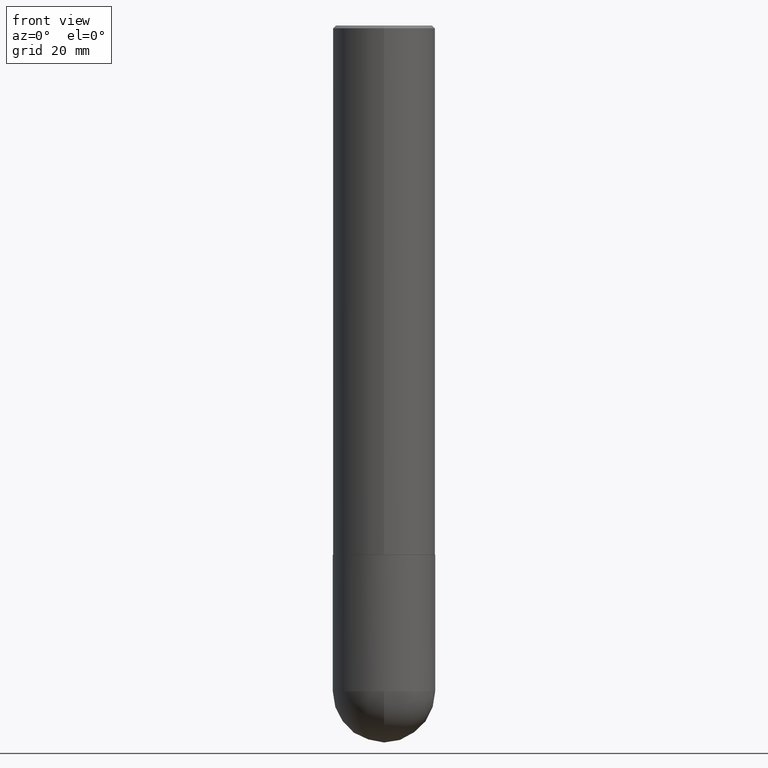
[diagram: clean part render]
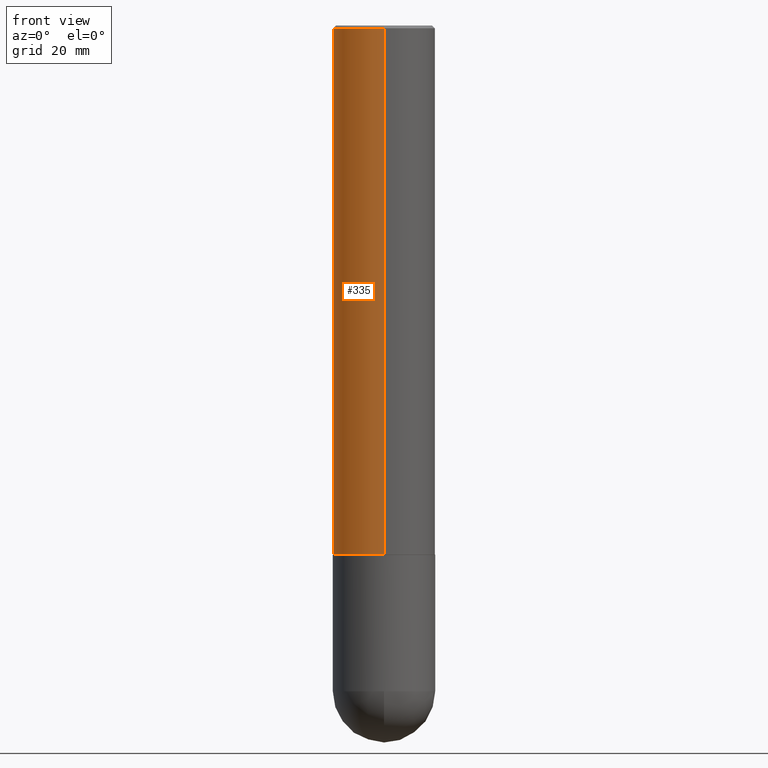
[diagram: same view with one face highlighted and labeled with its STEP entity id]
A machine part, front view. The second image highlights one B-rep face of the part: STEP entity #335.
In plain terms, the highlighted cylindrical surface (partial cylindrical patch) has radius 9.525 mm, axis along (-0, 0, 1).
Its self-contained STEP definition (entity closure, byte-faithful):
#10 = DIRECTION ( 'NONE',  ( -2.445496861697833263E-29, 3.491441161752143669E-15, 1.000000000000000000 ) ) ;
#13 = CARTESIAN_POINT ( 'NONE',  ( 0.000000000000000000, 0.000000000000000000, 0.000000000000000000 ) ) ;
#27 = LINE ( 'NONE', #256, #317 ) ;
#43 = CARTESIAN_POINT ( 'NONE',  ( 4.890993723395688036E-31, -6.982882323504315786E-17, -0.02000000000000008715 ) ) ;
#49 = DIRECTION ( 'NONE',  ( -2.445496861697833263E-29, 3.491441161752143275E-15, 1.000000000000000000 ) ) ;
#60 = CIRCLE ( 'NONE', #314, 0.3750000000000004996 ) ;
#71 = DIRECTION ( 'NONE',  ( -6.982962677686265922E-15, -1.000000000000000000, 3.494488891895535640E-15 ) ) ;
#78 = CARTESIAN_POINT ( 'NONE',  ( -2.618611004132258903E-15, -0.3750000000000140443, -3.873999999999999222 ) ) ;
#82 = CARTESIAN_POINT ( 'NONE',  ( 2.618611004132351200E-15, 0.3750000000000000555, -0.02000000000000139513 ) ) ;
#108 = DIRECTION ( 'NONE',  ( -6.982962677686266711E-15, -1.000000000000000000, 2.913971193241876822E-15 ) ) ;
#135 = CARTESIAN_POINT ( 'NONE',  ( 9.473854842217407742E-29, -1.352584306062780307E-14, -3.874000000000000110 ) ) ;
#142 = FACE_OUTER_BOUND ( 'NONE', #178, .T. ) ;
#163 = LINE ( 'NONE', #203, #245 ) ;
#176 = DIRECTION ( 'NONE',  ( -6.982962677686266711E-15, -1.000000000000000000, 3.491441161752143669E-15 ) ) ;
#177 = VERTEX_POINT ( 'NONE', #78 ) ;
#178 = EDGE_LOOP ( 'NONE', ( #286, #191, #319, #193 ) ) ;
#182 = VERTEX_POINT ( 'NONE', #206 ) ;
#191 = ORIENTED_EDGE ( 'NONE', *, *, #247, .T. ) ;
#193 = ORIENTED_EDGE ( 'NONE', *, *, #195, .F. ) ;
#195 = EDGE_CURVE ( 'NONE', #354, #182, #205, .T. ) ;
#203 = CARTESIAN_POINT ( 'NONE',  ( -2.618611004132351989E-15, -0.3750000000000002776, 1.309290435657054813E-15 ) ) ;
#205 = CIRCLE ( 'NONE', #381, 0.3750000000000001110 ) ;
#206 = CARTESIAN_POINT ( 'NONE',  ( -2.572686749164324336E-15, -0.3750000000000001665, -0.01999999999999877570 ) ) ;
#215 = EDGE_CURVE ( 'NONE', #177, #182, #163, .T. ) ;
#245 = VECTOR ( 'NONE', #10, 39.37007874015748143 ) ;
#246 = DIRECTION ( 'NONE',  ( -2.445496861697833263E-29, 3.491441161752143669E-15, 1.000000000000000000 ) ) ;
#247 = EDGE_CURVE ( 'NONE', #299, #177, #60, .T. ) ;
#256 = CARTESIAN_POINT ( 'NONE',  ( 2.664535259100377275E-15, 0.3750000000000002776, -1.309290435657054813E-15 ) ) ;
#286 = ORIENTED_EDGE ( 'NONE', *, *, #383, .F. ) ;
#299 = VERTEX_POINT ( 'NONE', #364 ) ;
#314 = AXIS2_PLACEMENT_3D ( 'NONE', #135, #400, #108 ) ;
#317 = VECTOR ( 'NONE', #246, 39.37007874015748143 ) ;
#319 = ORIENTED_EDGE ( 'NONE', *, *, #215, .T. ) ;
#335 = ADVANCED_FACE ( 'NONE', ( #142 ), #398, .T. ) ;
#344 = DIRECTION ( 'NONE',  ( -2.445496861697833263E-29, 3.491441161752143275E-15, 1.000000000000000000 ) ) ;
#354 = VERTEX_POINT ( 'NONE', #82 ) ;
#358 = AXIS2_PLACEMENT_3D ( 'NONE', #13, #344, #176 ) ;
#364 = CARTESIAN_POINT ( 'NONE',  ( 2.664535259100425790E-15, 0.3749999999999870104, -3.874000000000001442 ) ) ;
#381 = AXIS2_PLACEMENT_3D ( 'NONE', #43, #49, #71 ) ;
#383 = EDGE_CURVE ( 'NONE', #299, #354, #27, .T. ) ;
#398 = CYLINDRICAL_SURFACE ( 'NONE', #358, 0.3750000000000002776 ) ;
#400 = DIRECTION ( 'NONE',  ( -2.445496861697833263E-29, 3.491441161752143275E-15, 1.000000000000000000 ) ) ;